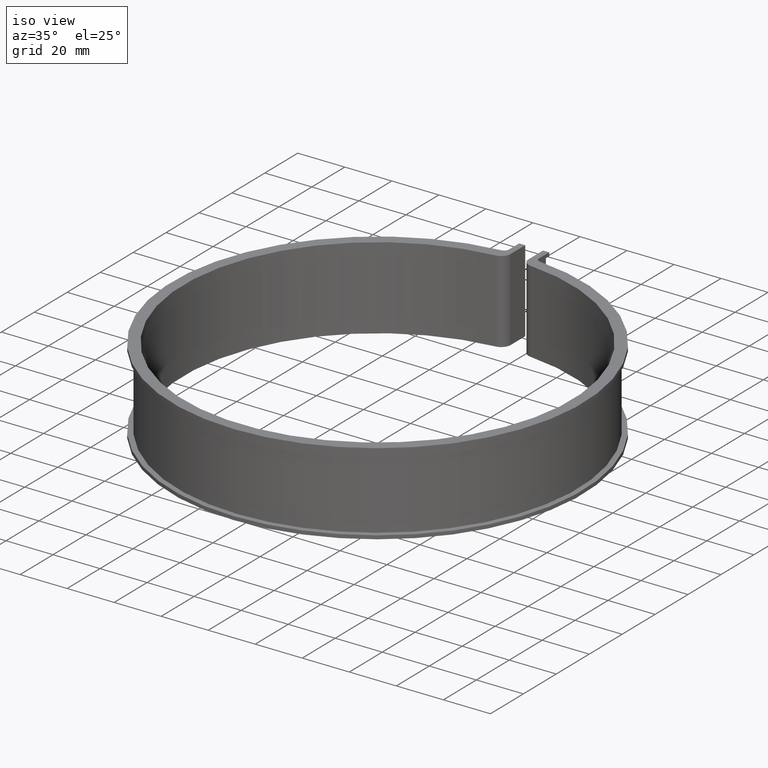
[diagram: clean part render]
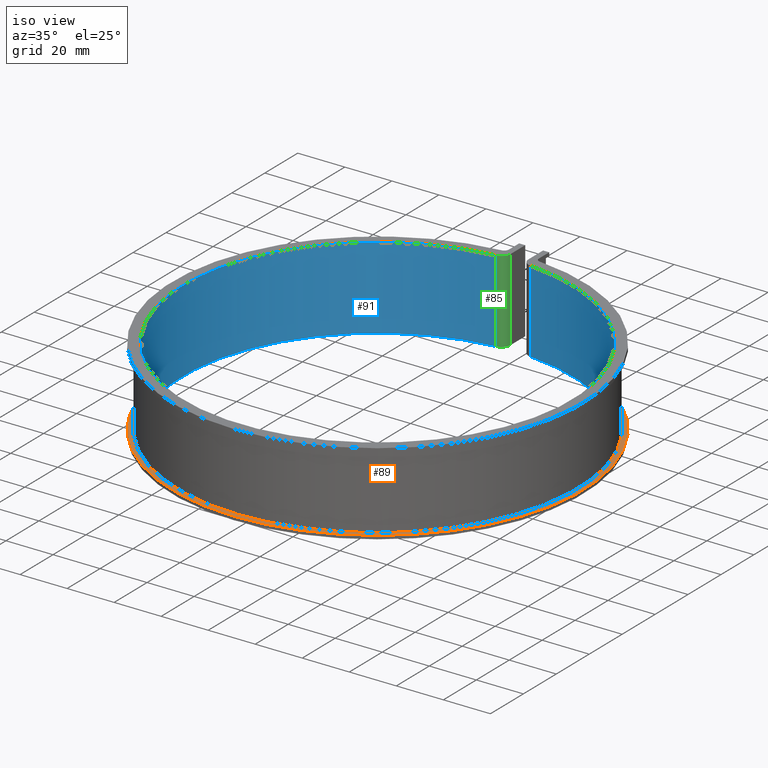
[diagram: same view with three faces highlighted in distinct colors, each labeled with its STEP entity id]
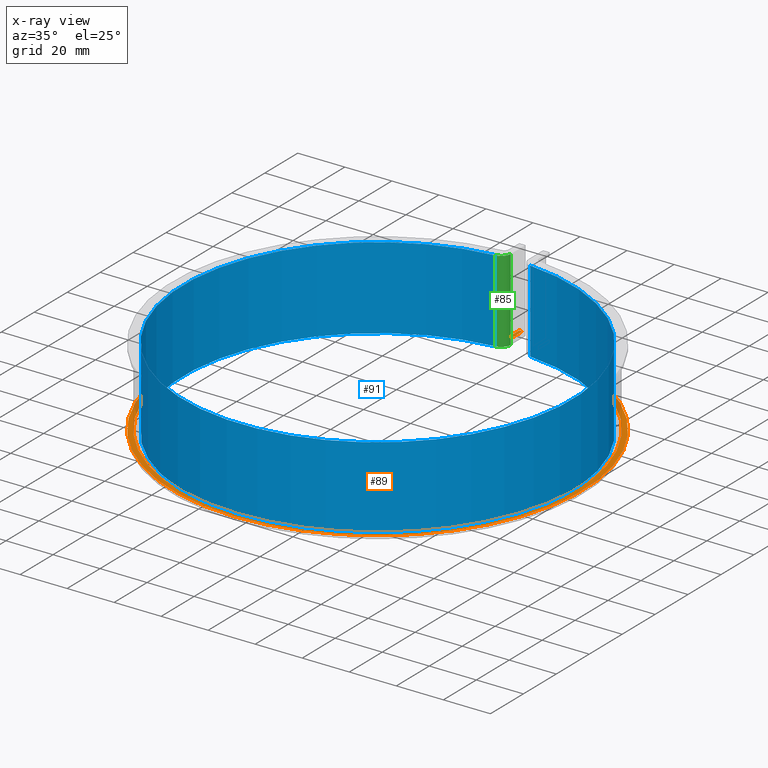
[diagram: x-ray of the same camera — body ghosted, the three highlighted faces saturated]
A machine part, iso view with three faces highlighted in distinct colors.
The next image is the same camera in x-ray (body ghosted, the three faces saturated) — at least one of them is partly hidden behind the body in this view.
Their STEP definitions:

[orange] entity #89 — the highlighted planar face has unit normal (0, 0, -1).
#89 = ADVANCED_FACE( '', ( #130 ), #131, .F. );
#130 = FACE_OUTER_BOUND( '', #182, .T. );
#131 = PLANE( '', #183 );
#182 = EDGE_LOOP( '', ( #336, #337, #338, #339, #340, #341, #342, #343, #344, #345, #346, #347 ) );
#183 = AXIS2_PLACEMENT_3D( '', #348, #349, #350 );
#336 = ORIENTED_EDGE( '', *, *, #454, .F. );
#337 = ORIENTED_EDGE( '', *, *, #485, .F. );
#338 = ORIENTED_EDGE( '', *, *, #486, .F. );
#339 = ORIENTED_EDGE( '', *, *, #487, .F. );
#340 = ORIENTED_EDGE( '', *, *, #488, .F. );
#341 = ORIENTED_EDGE( '', *, *, #439, .T. );
#342 = ORIENTED_EDGE( '', *, *, #483, .T. );
#343 = ORIENTED_EDGE( '', *, *, #489, .T. );
#344 = ORIENTED_EDGE( '', *, *, #490, .T. );
#345 = ORIENTED_EDGE( '', *, *, #491, .T. );
#346 = ORIENTED_EDGE( '', *, *, #492, .T. );
#347 = ORIENTED_EDGE( '', *, *, #459, .T. );
#348 = CARTESIAN_POINT( '', ( -8.39999999999999, 88.9040494015880, -32.0000000000000 ) );
#349 = DIRECTION( '', ( 0.000000000000000, 0.000000000000000, -1.00000000000000 ) );
#350 = DIRECTION( '', ( 0.000000000000000, -1.00000000000000, 0.000000000000000 ) );
#439 = EDGE_CURVE( '', #508, #521, #523, .T. );
#454 = EDGE_CURVE( '', #548, #550, #551, .T. );
#459 = EDGE_CURVE( '', #559, #550, #560, .T. );
#483 = EDGE_CURVE( '', #521, #596, #597, .T. );
#485 = EDGE_CURVE( '', #599, #548, #600, .T. );
#486 = EDGE_CURVE( '', #601, #599, #602, .T. );
#487 = EDGE_CURVE( '', #603, #601, #604, .T. );
#488 = EDGE_CURVE( '', #508, #603, #605, .T. );
#489 = EDGE_CURVE( '', #596, #606, #607, .T. );
#490 = EDGE_CURVE( '', #606, #608, #609, .T. );
#491 = EDGE_CURVE( '', #608, #610, #611, .T. );
#492 = EDGE_CURVE( '', #610, #559, #612, .T. );
#508 = VERTEX_POINT( '', #630 );
#521 = VERTEX_POINT( '', #649 );
#523 = LINE( '', #652, #653 );
#548 = VERTEX_POINT( '', #685 );
#550 = VERTEX_POINT( '', #688 );
#551 = LINE( '', #689, #690 );
#559 = VERTEX_POINT( '', #702 );
#560 = LINE( '', #703, #704 );
#596 = VERTEX_POINT( '', #753 );
#597 = LINE( '', #754, #755 );
#599 = VERTEX_POINT( '', #758 );
#600 = CIRCLE( '', #759, 3.70000000000000 );
#601 = VERTEX_POINT( '', #760 );
#602 = CIRCLE( '', #761, 85.1000000000000 );
#603 = VERTEX_POINT( '', #762 );
#604 = CIRCLE( '', #763, 3.70000000000000 );
#605 = LINE( '', #764, #765 );
#606 = VERTEX_POINT( '', #766 );
#607 = CIRCLE( '', #767, 2.00000000000000 );
#608 = VERTEX_POINT( '', #768 );
#609 = CIRCLE( '', #769, 87.3000000000000 );
#610 = VERTEX_POINT( '', #770 );
#611 = CIRCLE( '', #771, 2.00000000000000 );
#612 = LINE( '', #772, #773 );
#630 = CARTESIAN_POINT( '', ( -4.99999999999998, 95.1000000000000, -32.0000000000000 ) );
#649 = CARTESIAN_POINT( '', ( -6.40000000000001, 95.1000000000000, -32.0000000000000 ) );
#652 = CARTESIAN_POINT( '', ( -3.80000000000000, 95.1000000000000, -32.0000000000000 ) );
#653 = VECTOR( '', #803, 1000.00000000000 );
#685 = CARTESIAN_POINT( '', ( 5.00000000000001, 88.3727899299327, -32.0000000000000 ) );
#688 = CARTESIAN_POINT( '', ( 5.00000000000001, 95.1000000000000, -32.0000000000000 ) );
#689 = CARTESIAN_POINT( '', ( 5.00000000000001, 88.3727899299327, -32.0000000000000 ) );
#690 = VECTOR( '', #830, 1000.00000000000 );
#702 = CARTESIAN_POINT( '', ( 6.39999999999999, 95.1000000000000, -32.0000000000000 ) );
#703 = CARTESIAN_POINT( '', ( 6.39999999999999, 95.1000000000000, -32.0000000000000 ) );
#704 = VECTOR( '', #835, 1000.00000000000 );
#753 = CARTESIAN_POINT( '', ( -6.39999999999999, 88.9040494015880, -32.0000000000000 ) );
#754 = CARTESIAN_POINT( '', ( -6.39999999999999, 95.1000000000000, -32.0000000000000 ) );
#755 = VECTOR( '', #879, 1000.00000000000 );
#758 = CARTESIAN_POINT( '', ( 8.33749999999997, 84.6905903495188, -32.0000000000000 ) );
#759 = AXIS2_PLACEMENT_3D( '', #881, #882, #883 );
#760 = CARTESIAN_POINT( '', ( -8.33749999999999, 84.6905903495188, -32.0000000000000 ) );
#761 = AXIS2_PLACEMENT_3D( '', #884, #885, #886 );
#762 = CARTESIAN_POINT( '', ( -4.99999999999999, 88.3727899299327, -32.0000000000000 ) );
#763 = AXIS2_PLACEMENT_3D( '', #887, #888, #889 );
#764 = CARTESIAN_POINT( '', ( -4.99999999999999, 95.1000000000000, -32.0000000000000 ) );
#765 = VECTOR( '', #890, 1000.00000000000 );
#766 = CARTESIAN_POINT( '', ( -8.21187010078385, 86.9129172761325, -32.0000000000000 ) );
#767 = AXIS2_PLACEMENT_3D( '', #891, #892, #893 );
#768 = CARTESIAN_POINT( '', ( 8.21187010078388, 86.9129172761325, -32.0000000000000 ) );
#769 = AXIS2_PLACEMENT_3D( '', #894, #895, #896 );
#770 = CARTESIAN_POINT( '', ( 6.39999999999999, 88.9040494015881, -32.0000000000000 ) );
#771 = AXIS2_PLACEMENT_3D( '', #897, #898, #899 );
#772 = CARTESIAN_POINT( '', ( 6.39999999999999, 88.9040494015881, -32.0000000000000 ) );
#773 = VECTOR( '', #900, 1000.00000000000 );
#803 = DIRECTION( '', ( -1.00000000000000, 0.000000000000000, 0.000000000000000 ) );
#830 = DIRECTION( '', ( -6.93889390390723E-017, 1.00000000000000, 0.000000000000000 ) );
#835 = DIRECTION( '', ( -1.00000000000000, 0.000000000000000, 0.000000000000000 ) );
#879 = DIRECTION( '', ( -6.10365667473321E-017, -1.00000000000000, 0.000000000000000 ) );
#881 = CARTESIAN_POINT( '', ( 8.70000000000001, 88.3727899299327, -32.0000000000000 ) );
#882 = DIRECTION( '', ( 0.000000000000000, 0.000000000000000, -1.00000000000000 ) );
#883 = DIRECTION( '', ( -1.00000000000000, -2.69229083471600E-015, 0.000000000000000 ) );
#884 = CARTESIAN_POINT( '', ( 8.67361737988404E-016, 8.32667268468867E-014, -32.0000000000000 ) );
#885 = DIRECTION( '', ( 0.000000000000000, 0.000000000000000, 1.00000000000000 ) );
#886 = DIRECTION( '', ( 1.00000000000000, 0.000000000000000, 0.000000000000000 ) );
#887 = CARTESIAN_POINT( '', ( -8.69999999999999, 88.3727899299327, -32.0000000000000 ) );
#888 = DIRECTION( '', ( 0.000000000000000, 0.000000000000000, -1.00000000000000 ) );
#889 = DIRECTION( '', ( 1.00000000000000, -1.01307850997046E-015, 0.000000000000000 ) );
#890 = DIRECTION( '', ( -6.93889390390723E-017, -1.00000000000000, 0.000000000000000 ) );
#891 = CARTESIAN_POINT( '', ( -8.39999999999999, 88.9040494015880, -32.0000000000000 ) );
#892 = DIRECTION( '', ( 0.000000000000000, 0.000000000000000, -1.00000000000000 ) );
#893 = DIRECTION( '', ( 1.00000000000000, 0.000000000000000, 0.000000000000000 ) );
#894 = CARTESIAN_POINT( '', ( -1.73472347597681E-015, 5.55111512312578E-014, -32.0000000000000 ) );
#895 = DIRECTION( '', ( 0.000000000000000, 0.000000000000000, 1.00000000000000 ) );
#896 = DIRECTION( '', ( 1.00000000000000, 0.000000000000000, 0.000000000000000 ) );
#897 = CARTESIAN_POINT( '', ( 8.39999999999999, 88.9040494015881, -32.0000000000000 ) );
#898 = DIRECTION( '', ( 0.000000000000000, 0.000000000000000, -1.00000000000000 ) );
#899 = DIRECTION( '', ( -1.00000000000000, 0.000000000000000, 0.000000000000000 ) );
#900 = DIRECTION( '', ( 6.10365667473321E-017, 1.00000000000000, 0.000000000000000 ) );

[blue] entity #91 — the highlighted cylindrical surface (partial cylindrical patch) has radius 82.6 mm, axis along (0, 0, -1).
#91 = ADVANCED_FACE( '', ( #134 ), #135, .F. );
#134 = FACE_OUTER_BOUND( '', #186, .T. );
#135 = CYLINDRICAL_SURFACE( '', #187, 82.6000000000000 );
#186 = EDGE_LOOP( '', ( #358, #359, #360, #361 ) );
#187 = AXIS2_PLACEMENT_3D( '', #362, #363, #364 );
#358 = ORIENTED_EDGE( '', *, *, #474, .T. );
#359 = ORIENTED_EDGE( '', *, *, #470, .F. );
#360 = ORIENTED_EDGE( '', *, *, #428, .F. );
#361 = ORIENTED_EDGE( '', *, *, #477, .T. );
#362 = CARTESIAN_POINT( '', ( 2.60208521396521E-015, 2.77555756156289E-014, -32.0000000000000 ) );
#363 = DIRECTION( '', ( 0.000000000000000, 0.000000000000000, -1.00000000000000 ) );
#364 = DIRECTION( '', ( -0.0900692840646651, -0.995935501961888, 0.000000000000000 ) );
#428 = EDGE_CURVE( '', #500, #501, #502, .T. );
#470 = EDGE_CURVE( '', #501, #576, #577, .T. );
#474 = EDGE_CURVE( '', #582, #576, #583, .T. );
#477 = EDGE_CURVE( '', #500, #582, #586, .T. );
#500 = VERTEX_POINT( '', #620 );
#501 = VERTEX_POINT( '', #621 );
#502 = LINE( '', #622, #623 );
#576 = VERTEX_POINT( '', #727 );
#577 = CIRCLE( '', #728, 82.6000000000000 );
#582 = VERTEX_POINT( '', #735 );
#583 = LINE( '', #736, #737 );
#586 = CIRCLE( '', #741, 82.6000000000000 );
#620 = CARTESIAN_POINT( '', ( 7.43972286374134, 82.2642724620520, -33.5000000000000 ) );
#621 = CARTESIAN_POINT( '', ( 7.43972286374134, 82.2642724620520, 1.50000000000000 ) );
#622 = CARTESIAN_POINT( '', ( 7.43972286374134, 82.2642724620520, -32.0000000000000 ) );
#623 = VECTOR( '', #788, 1000.00000000000 );
#727 = CARTESIAN_POINT( '', ( -7.43972286374151, 82.2642724620519, 1.50000000000000 ) );
#728 = AXIS2_PLACEMENT_3D( '', #852, #853, #854 );
#735 = CARTESIAN_POINT( '', ( -7.43972286374151, 82.2642724620519, -33.5000000000000 ) );
#736 = CARTESIAN_POINT( '', ( -7.43972286374151, 82.2642724620520, -32.0000000000000 ) );
#737 = VECTOR( '', #860, 1000.00000000000 );
#741 = AXIS2_PLACEMENT_3D( '', #865, #866, #867 );
#788 = DIRECTION( '', ( 0.000000000000000, 0.000000000000000, 1.00000000000000 ) );
#852 = CARTESIAN_POINT( '', ( 0.000000000000000, 0.000000000000000, 1.50000000000000 ) );
#853 = DIRECTION( '', ( 0.000000000000000, 0.000000000000000, -1.00000000000000 ) );
#854 = DIRECTION( '', ( 1.00000000000000, 0.000000000000000, 0.000000000000000 ) );
#860 = DIRECTION( '', ( 0.000000000000000, 0.000000000000000, 1.00000000000000 ) );
#865 = CARTESIAN_POINT( '', ( 0.000000000000000, 0.000000000000000, -33.5000000000000 ) );
#866 = DIRECTION( '', ( 0.000000000000000, 0.000000000000000, -1.00000000000000 ) );
#867 = DIRECTION( '', ( 1.00000000000000, 0.000000000000000, 0.000000000000000 ) );

[green] entity #85 — the highlighted cylindrical surface (edge-blend (fillet) strip) has radius 4 mm, axis along (0, 0, -1).
#85 = ADVANCED_FACE( '', ( #122 ), #123, .T. );
#122 = FACE_OUTER_BOUND( '', #174, .T. );
#123 = CYLINDRICAL_SURFACE( '', #175, 4.00000000000000 );
#174 = EDGE_LOOP( '', ( #300, #301, #302, #303 ) );
#175 = AXIS2_PLACEMENT_3D( '', #304, #305, #306 );
#300 = ORIENTED_EDGE( '', *, *, #473, .T. );
#301 = ORIENTED_EDGE( '', *, *, #471, .F. );
#302 = ORIENTED_EDGE( '', *, *, #474, .F. );
#303 = ORIENTED_EDGE( '', *, *, #475, .T. );
#304 = CARTESIAN_POINT( '', ( -7.79999999999999, 86.2480144698995, -32.0000000000000 ) );
#305 = DIRECTION( '', ( 0.000000000000000, 0.000000000000000, -1.00000000000000 ) );
#306 = DIRECTION( '', ( -0.0900692840646651, -0.995935501961888, 0.000000000000000 ) );
#471 = EDGE_CURVE( '', #576, #570, #578, .T. );
#473 = EDGE_CURVE( '', #580, #570, #581, .T. );
#474 = EDGE_CURVE( '', #582, #576, #583, .T. );
#475 = EDGE_CURVE( '', #582, #580, #584, .T. );
#570 = VERTEX_POINT( '', #719 );
#576 = VERTEX_POINT( '', #727 );
#578 = CIRCLE( '', #729, 4.00000000000000 );
#580 = VERTEX_POINT( '', #732 );
#581 = LINE( '', #733, #734 );
#582 = VERTEX_POINT( '', #735 );
#583 = LINE( '', #736, #737 );
#584 = CIRCLE( '', #738, 4.00000000000000 );
#719 = CARTESIAN_POINT( '', ( -3.80000000000000, 86.2480144698995, 1.50000000000000 ) );
#727 = CARTESIAN_POINT( '', ( -7.43972286374151, 82.2642724620519, 1.50000000000000 ) );
#729 = AXIS2_PLACEMENT_3D( '', #855, #856, #857 );
#732 = CARTESIAN_POINT( '', ( -3.80000000000000, 86.2480144698995, -33.5000000000000 ) );
#733 = CARTESIAN_POINT( '', ( -3.79999999999999, 86.2480144698995, -32.0000000000000 ) );
#734 = VECTOR( '', #859, 1000.00000000000 );
#735 = CARTESIAN_POINT( '', ( -7.43972286374151, 82.2642724620519, -33.5000000000000 ) );
#736 = CARTESIAN_POINT( '', ( -7.43972286374151, 82.2642724620520, -32.0000000000000 ) );
#737 = VECTOR( '', #860, 1000.00000000000 );
#738 = AXIS2_PLACEMENT_3D( '', #861, #862, #863 );
#855 = CARTESIAN_POINT( '', ( -7.80000000000000, 86.2480144698995, 1.50000000000000 ) );
#856 = DIRECTION( '', ( 0.000000000000000, 0.000000000000000, 1.00000000000000 ) );
#857 = DIRECTION( '', ( 1.00000000000000, 0.000000000000000, 0.000000000000000 ) );
#859 = DIRECTION( '', ( 0.000000000000000, 0.000000000000000, 1.00000000000000 ) );
#860 = DIRECTION( '', ( 0.000000000000000, 0.000000000000000, 1.00000000000000 ) );
#861 = CARTESIAN_POINT( '', ( -7.80000000000000, 86.2480144698995, -33.5000000000000 ) );
#862 = DIRECTION( '', ( 0.000000000000000, 0.000000000000000, 1.00000000000000 ) );
#863 = DIRECTION( '', ( 1.00000000000000, 0.000000000000000, 0.000000000000000 ) );